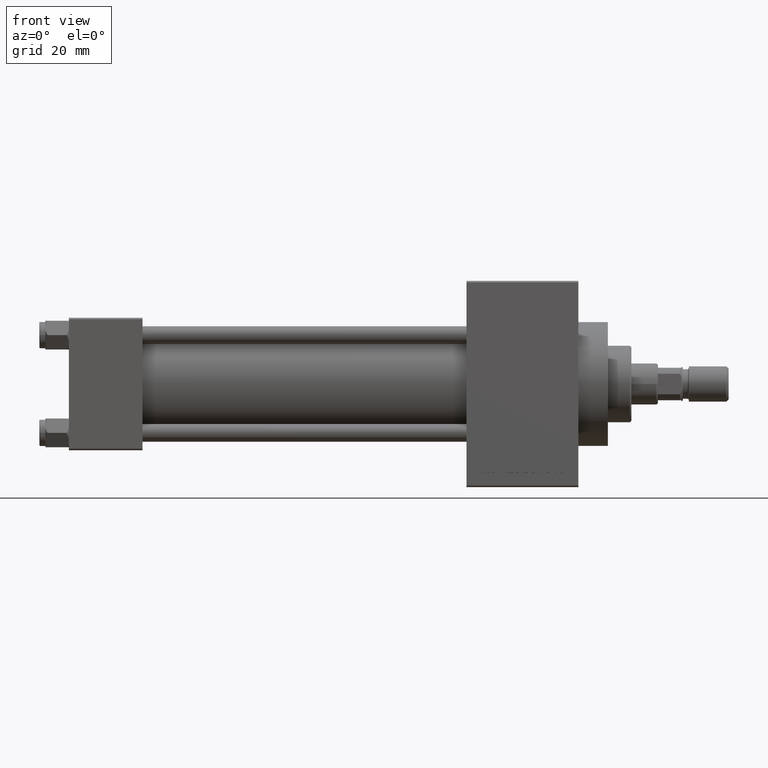
[diagram: clean part render]
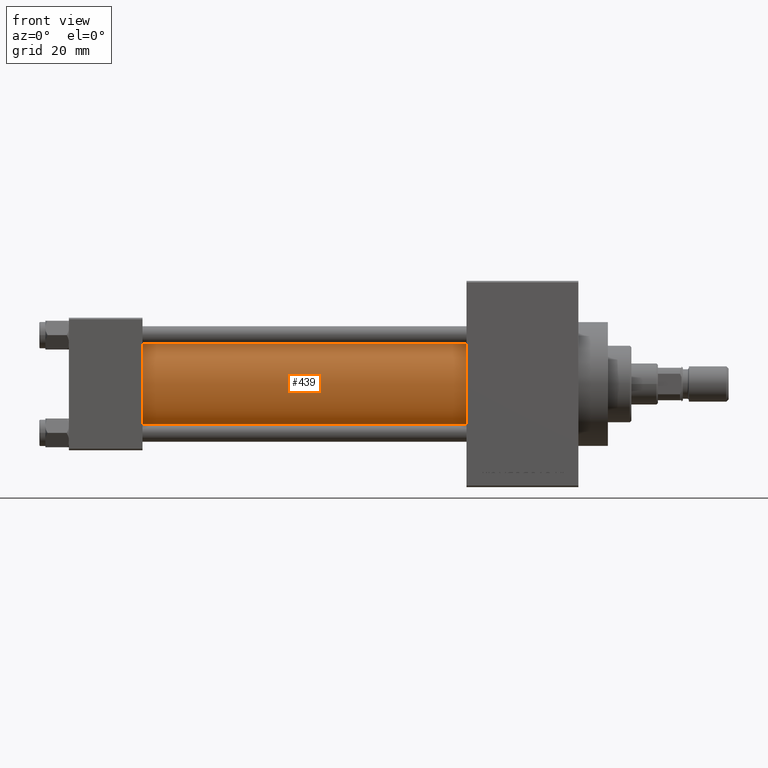
[diagram: same view with one face highlighted and labeled with its STEP entity id]
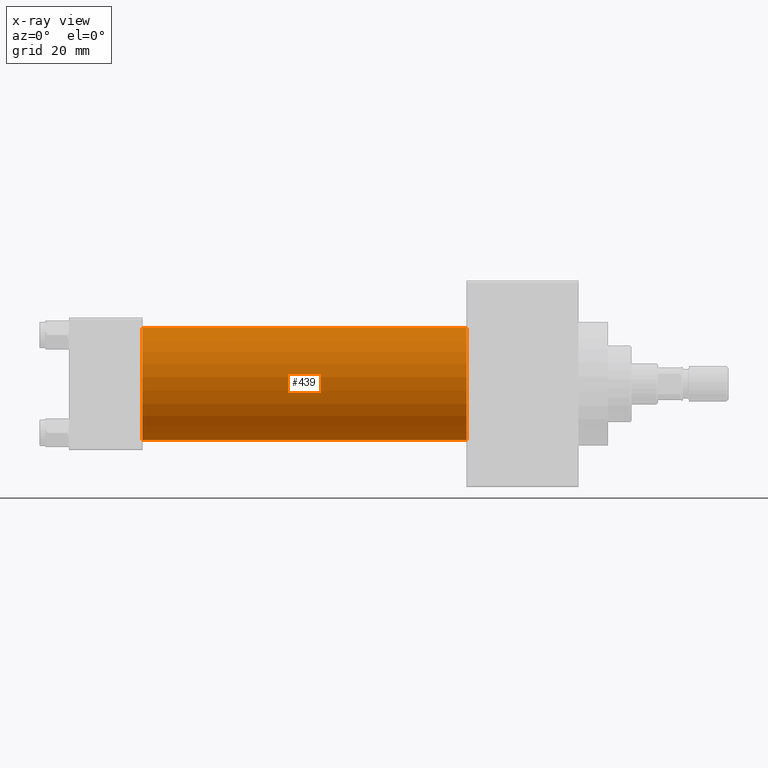
[diagram: x-ray of the same camera — body ghosted, the highlighted face saturated]
A machine part, front view. The second image highlights one B-rep face of the part: STEP entity #439.
The next image is the same camera in x-ray: the body ghosted, the highlighted face saturated — about 0% of this face is hidden behind the body in this view.
In plain terms, the highlighted cylindrical surface (partial cylindrical patch) has radius 19 mm, axis along (-1, -0, -0).
Its self-contained STEP definition (entity closure, byte-faithful):
#439 = ADVANCED_FACE ( 'NONE', ( #22619 ), #36651, .T. ) ;
#1428 = VERTEX_POINT ( 'NONE', #31557 ) ;
#1491 = ORIENTED_EDGE ( 'NONE', *, *, #10510, .F. ) ;
#3939 = VERTEX_POINT ( 'NONE', #38977 ) ;
#5636 = CARTESIAN_POINT ( 'NONE',  ( 135.0000000000000000, -2.752562955852396712E-16, -19.00000000000000000 ) ) ;
#6721 = LINE ( 'NONE', #21465, #14002 ) ;
#7115 = DIRECTION ( 'NONE',  ( 0.000000000000000000, 0.000000000000000000, 1.000000000000000000 ) ) ;
#8070 = DIRECTION ( 'NONE',  ( 0.000000000000000000, 0.000000000000000000, -1.000000000000000000 ) ) ;
#8606 = CIRCLE ( 'NONE', #36427, 19.00000000000000000 ) ;
#10384 = CARTESIAN_POINT ( 'NONE',  ( 135.0000000000000000, -2.602085213965210642E-15, 19.00000000000000000 ) ) ;
#10510 = EDGE_CURVE ( 'NONE', #21070, #1428, #40089, .T. ) ;
#12709 = EDGE_CURVE ( 'NONE', #21070, #20813, #6721, .T. ) ;
#14002 = VECTOR ( 'NONE', #36220, 1000.000000000000000 ) ;
#15131 = DIRECTION ( 'NONE',  ( 0.000000000000000000, 0.000000000000000000, 1.000000000000000000 ) ) ;
#15335 = CARTESIAN_POINT ( 'NONE',  ( 135.0000000000000000, -2.602085213965210642E-15, 0.000000000000000000 ) ) ;
#18280 = CARTESIAN_POINT ( 'NONE',  ( 135.0000000000000000, -2.602085213965210642E-15, 0.000000000000000000 ) ) ;
#20548 = AXIS2_PLACEMENT_3D ( 'NONE', #18280, #47786, #15131 ) ;
#20813 = VERTEX_POINT ( 'NONE', #28592 ) ;
#21070 = VERTEX_POINT ( 'NONE', #10384 ) ;
#21465 = CARTESIAN_POINT ( 'NONE',  ( 135.0000000000000000, -2.602085213965210642E-15, 19.00000000000000000 ) ) ;
#22364 = EDGE_LOOP ( 'NONE', ( #37253, #1491, #23219, #26047 ) ) ;
#22619 = FACE_OUTER_BOUND ( 'NONE', #22364, .T. ) ;
#23219 = ORIENTED_EDGE ( 'NONE', *, *, #12709, .T. ) ;
#26047 = ORIENTED_EDGE ( 'NONE', *, *, #38774, .T. ) ;
#28592 = CARTESIAN_POINT ( 'NONE',  ( 24.99999999999999289, -2.602085213965210642E-15, 19.00000000000000000 ) ) ;
#28629 = VECTOR ( 'NONE', #42381, 1000.000000000000000 ) ;
#29597 = DIRECTION ( 'NONE',  ( 1.000000000000000000, 0.000000000000000000, 0.000000000000000000 ) ) ;
#31557 = CARTESIAN_POINT ( 'NONE',  ( 135.0000000000000000, -2.752562955852396712E-16, -19.00000000000000000 ) ) ;
#31585 = AXIS2_PLACEMENT_3D ( 'NONE', #15335, #29597, #8070 ) ;
#33461 = CARTESIAN_POINT ( 'NONE',  ( 24.99999999999999289, -2.602085213965210642E-15, 0.000000000000000000 ) ) ;
#34645 = LINE ( 'NONE', #5636, #28629 ) ;
#36220 = DIRECTION ( 'NONE',  ( -1.000000000000000000, -0.000000000000000000, -0.000000000000000000 ) ) ;
#36427 = AXIS2_PLACEMENT_3D ( 'NONE', #33461, #40242, #7115 ) ;
#36651 = CYLINDRICAL_SURFACE ( 'NONE', #20548, 19.00000000000000000 ) ;
#37216 = EDGE_CURVE ( 'NONE', #1428, #3939, #34645, .T. ) ;
#37253 = ORIENTED_EDGE ( 'NONE', *, *, #37216, .F. ) ;
#38774 = EDGE_CURVE ( 'NONE', #20813, #3939, #8606, .T. ) ;
#38977 = CARTESIAN_POINT ( 'NONE',  ( 24.99999999999999289, -2.752562955852396712E-16, -19.00000000000000000 ) ) ;
#40089 = CIRCLE ( 'NONE', #31585, 19.00000000000000000 ) ;
#40242 = DIRECTION ( 'NONE',  ( 1.000000000000000000, -0.000000000000000000, 0.000000000000000000 ) ) ;
#42381 = DIRECTION ( 'NONE',  ( -1.000000000000000000, -0.000000000000000000, -0.000000000000000000 ) ) ;
#47786 = DIRECTION ( 'NONE',  ( -1.000000000000000000, -0.000000000000000000, -0.000000000000000000 ) ) ;